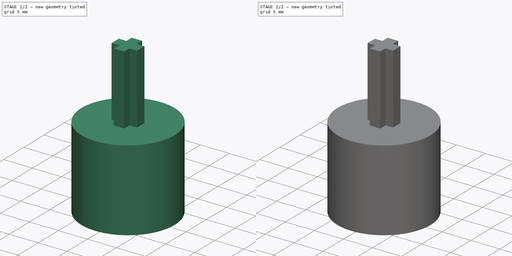
[diagram: build sequence overview — one tinted view per stage of 2, left to right]
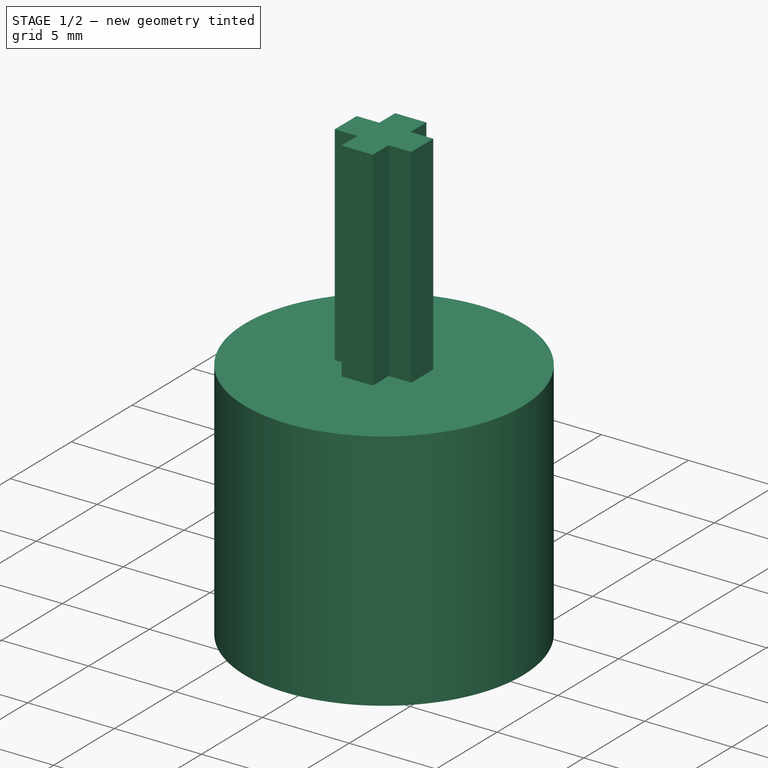
[diagram: stage 1 of 2 — iso view after this stage's code; geometry added in this stage tinted green]
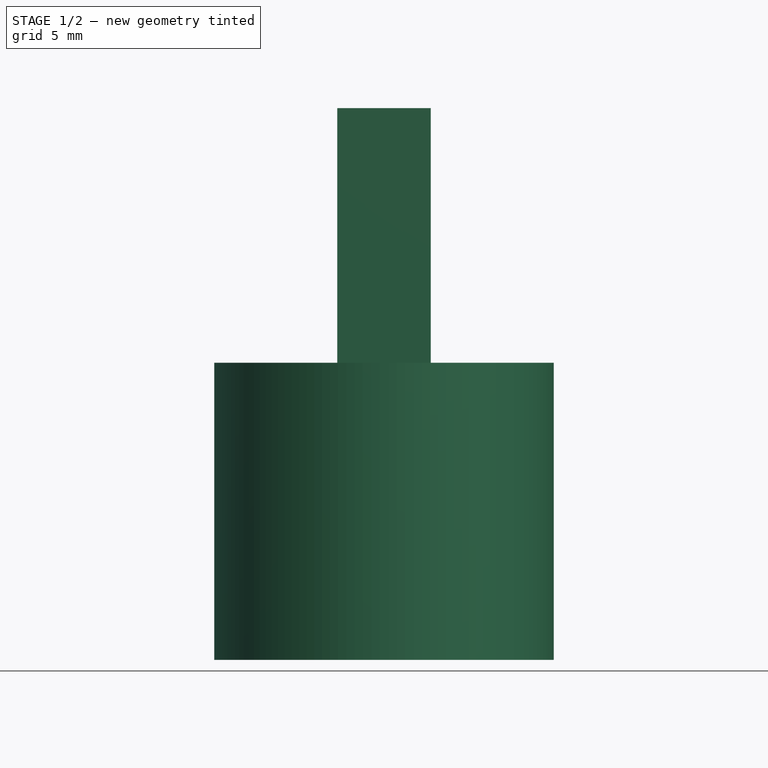
[diagram: stage 1 of 2 — front view after this stage's code; geometry added in this stage tinted green]
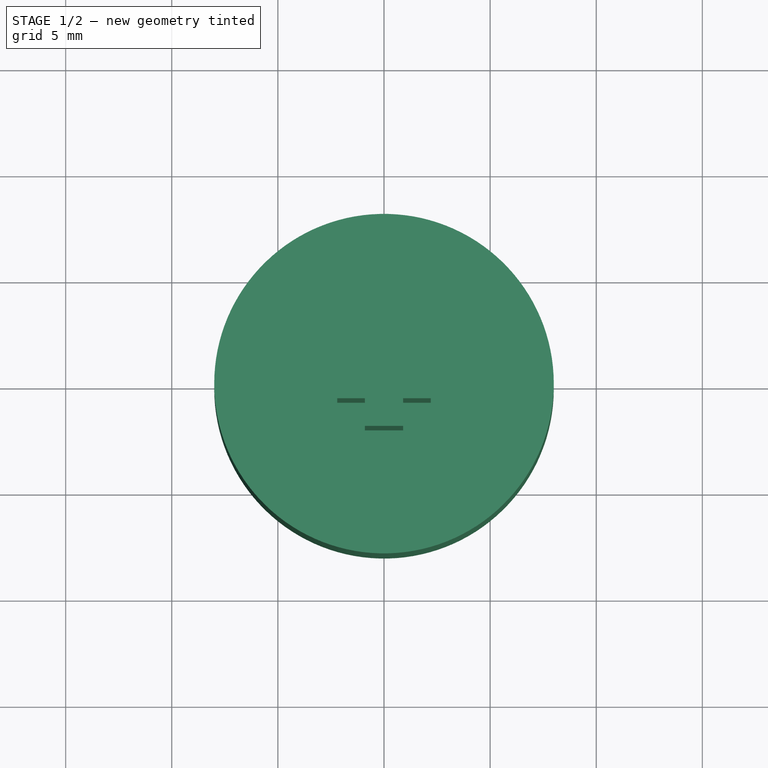
[diagram: stage 1 of 2 — top view after this stage's code; geometry added in this stage tinted green]
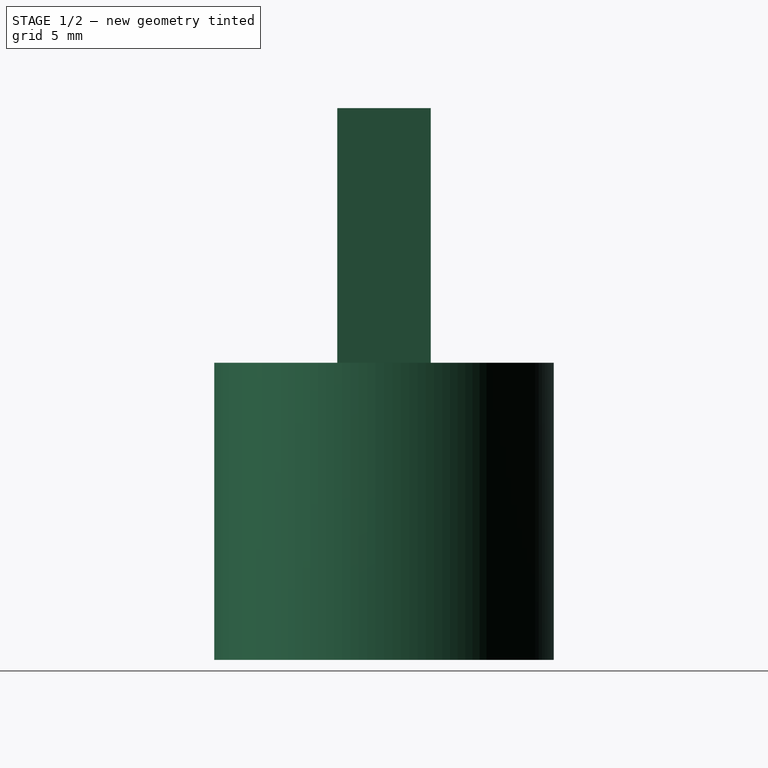
[diagram: stage 1 of 2 — right view after this stage's code; geometry added in this stage tinted green]
FCSTD DOCUMENT  (FreeCAD 0.16R6706 (Git))
Label: Adaptateur arbre-roue petit
License: All rights reserved
LicenseURL: http://en.wikipedia.org/wiki/All_rights_reserved
objects: Sketcher::SketchObject×3, PartDesign::Pad×2, PartDesign::Pocket×1
note: 9 computed .brp shape members not serialized (recipe doc carries the construction recipe); baked Part::Feature solids carry a one-line shape summary decoded from their .brp

FEATURE [Sketcher::SketchObject] Sketch
  sketch-geometry (1):
    g0: Circle CenterX=0 CenterY=0 CenterZ=0 NormalX=0 NormalY=0 NormalZ=1 Radius=8
  constraints (2):
    c: Coincident(g0,g-1)
    c: Radius(g0) = 8
FEATURE [PartDesign::Pad] Pad
  Length = 14
  Length2 = 100
  Sketch = -> Sketch
  Type = 0
FEATURE [Sketcher::SketchObject] Sketch001
  Placement = pos=(0,0,14) rot=(0,0,1;0rad)
  Support = -> Pad [Face3]
  sketch-geometry (12):
    g0: LineSegment StartX=-0.9 StartY=2.2 StartZ=0 EndX=0.9 EndY=2.2 EndZ=0
    g1: LineSegment StartX=0.9 StartY=2.2 StartZ=0 EndX=0.9 EndY=0.9 EndZ=0
    g2: LineSegment StartX=0.9 StartY=0.9 StartZ=0 EndX=2.2 EndY=0.9 EndZ=0
    g3: LineSegment StartX=2.2 StartY=0.9 StartZ=0 EndX=2.2 EndY=-0.9 EndZ=0
    g4: LineSegment StartX=2.2 StartY=-0.9 StartZ=0 EndX=0.9 EndY=-0.9 EndZ=0
    g5: LineSegment StartX=0.9 StartY=-0.9 StartZ=0 EndX=0.9 EndY=-2.2 EndZ=0
    g6: LineSegment StartX=0.9 StartY=-2.2 StartZ=0 EndX=-0.9 EndY=-2.2 EndZ=0
    g7: LineSegment StartX=-0.9 StartY=-2.2 StartZ=0 EndX=-0.9 EndY=-0.9 EndZ=0
    g8: LineSegment StartX=-0.9 StartY=-0.9 StartZ=0 EndX=-2.2 EndY=-0.9 EndZ=0
    g9: LineSegment StartX=-2.2 StartY=-0.9 StartZ=0 EndX=-2.2 EndY=0.9 EndZ=0
    g10: LineSegment StartX=-2.2 StartY=0.9 StartZ=0 EndX=-0.9 EndY=0.9 EndZ=0
    g11: LineSegment StartX=-0.9 StartY=0.9 StartZ=0 EndX=-0.9 EndY=2.2 EndZ=0
  constraints (38):
    c: Horizontal(g0)
    c: Coincident(g0,g1)
    c: Vertical(g1)
    c: Coincident(g1,g2)
    c: Horizontal(g2)
    c: Coincident(g2,g3)
    c: Vertical(g3)
    c: Coincident(g3,g4)
    c: Horizontal(g4)
    c: Coincident(g4,g5)
    c: Vertical(g5)
    c: Coincident(g5,g6)
    c: Horizontal(g6)
    c: Coincident(g6,g7)
    c: Vertical(g7)
    c: Coincident(g7,g8)
    c: Horizontal(g8)
    c: Coincident(g8,g9)
    c: Vertical(g9)
    c: Coincident(g9,g10)
    c: Horizontal(g10)
    c: Coincident(g10,g11)
    c: Coincident(g11,g0)
    c: Equal(g11,g1)
    c: Equal(g1,g7)
    c: Equal(g7,g5)
    c: Equal(g5,g4)
    c: Equal(g4,g2)
    c: Equal(g2,g10)
    c: Equal(g10,g8)
    c: Parallel(g11,g1)
    c: Equal(g0,g6)
    c: Equal(g6,g3)
    c: Equal(g3,g9)
    c: DistanceX(g-1,g2) = 2.2
    c: DistanceX(g0,g0) = 1.8
    c: DistanceY(g-1,g0) = 2.2
    c: DistanceY(g11,g11) = 1.3
FEATURE [PartDesign::Pad] Pad001
  Length = 12
  Length2 = 100
  Sketch = -> Sketch001
  Type = 0
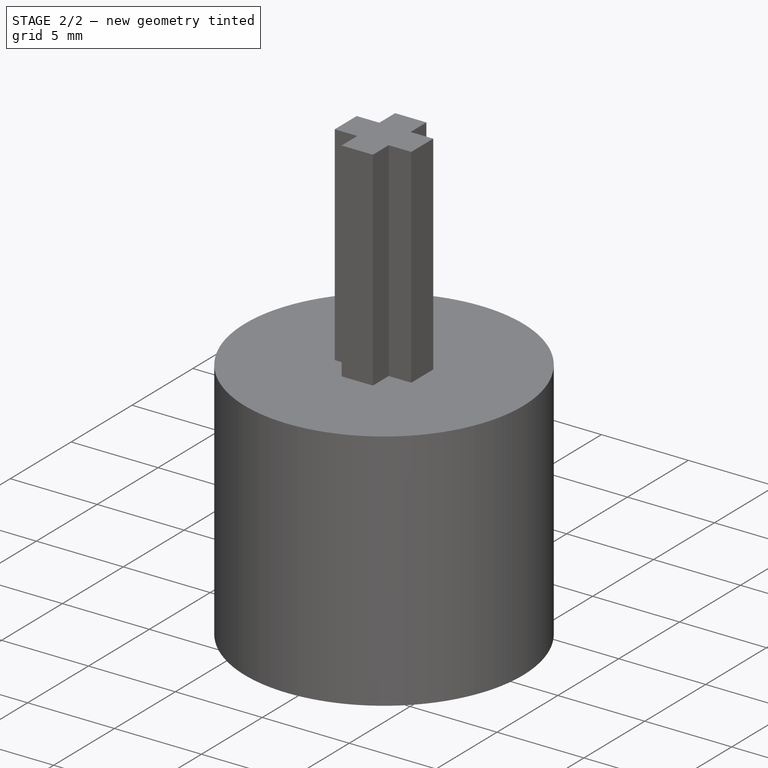
[diagram: stage 2 of 2 — iso view after this stage's code; geometry added in this stage tinted green]
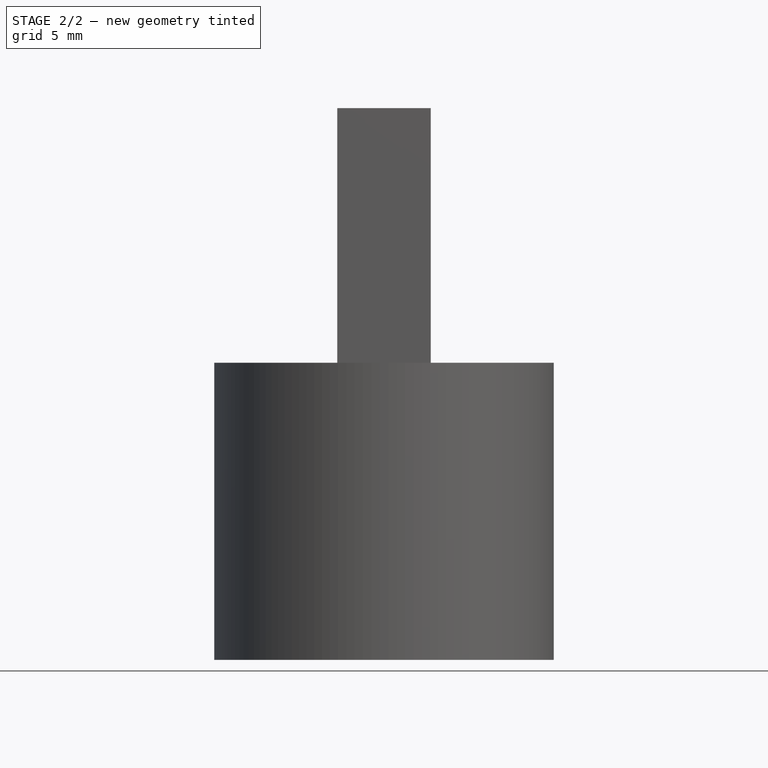
[diagram: stage 2 of 2 — front view after this stage's code; geometry added in this stage tinted green]
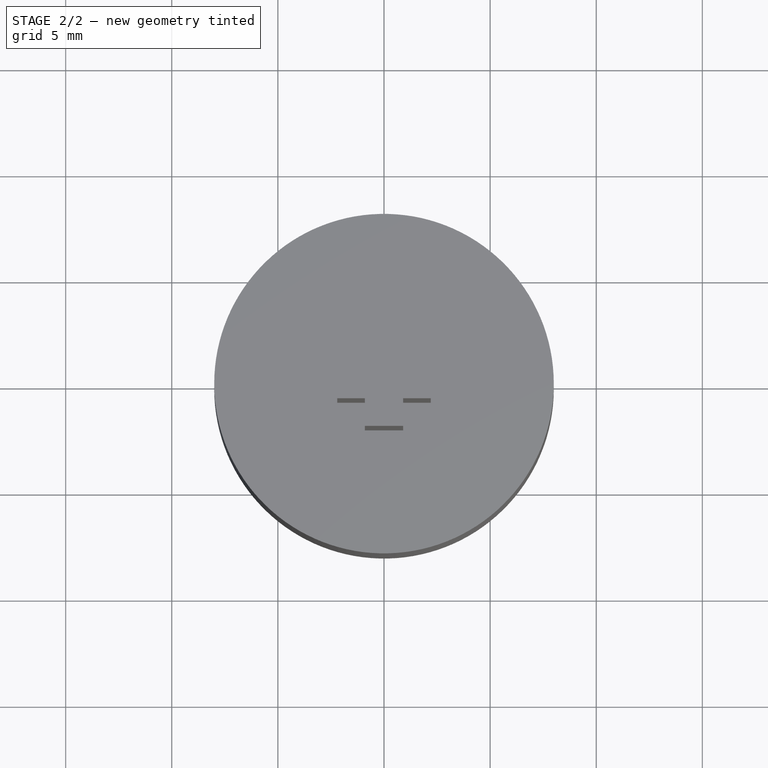
[diagram: stage 2 of 2 — top view after this stage's code; geometry added in this stage tinted green]
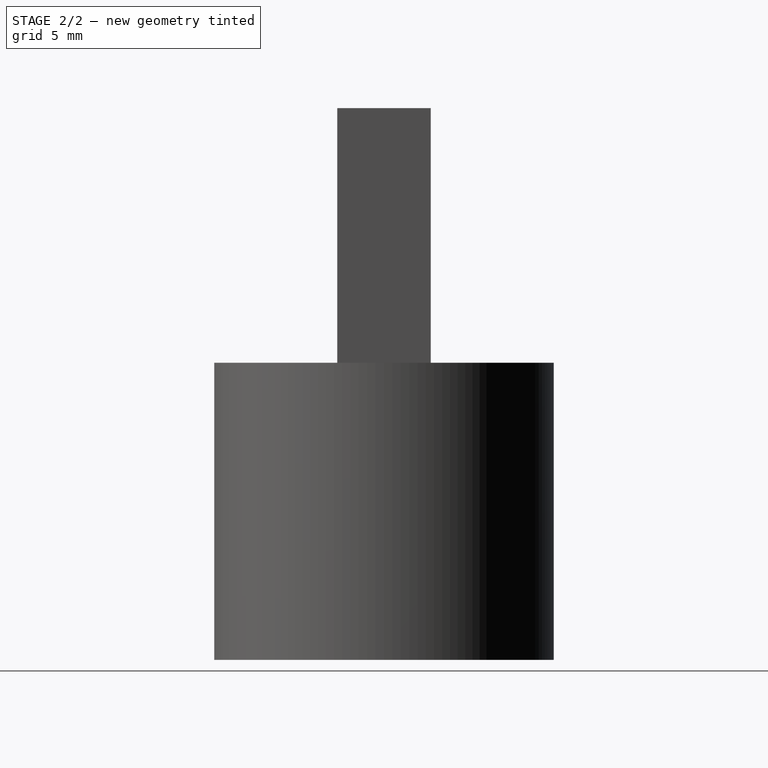
[diagram: stage 2 of 2 — right view after this stage's code; geometry added in this stage tinted green]
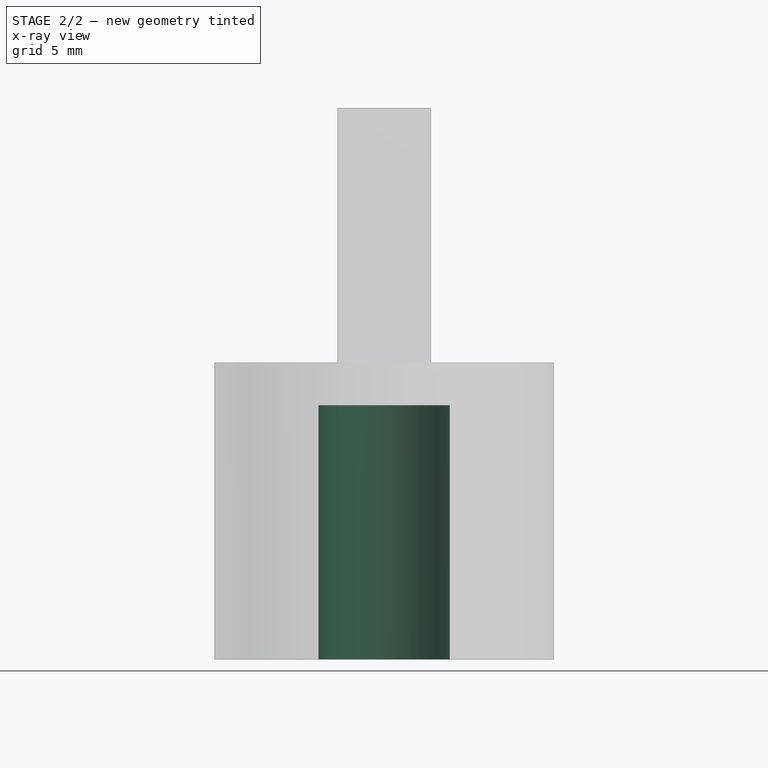
[diagram: stage 2 of 2 — x-ray composite at the front view; earlier geometry ghosted, this stage's added geometry solid]
FEATURE [Sketcher::SketchObject] Sketch002
  Placement = pos=(0,0,0) rot=(1,0,0;3.14159rad)
  Support = -> Pad001 [Face2]
  sketch-geometry (2):
    g0: ArcOfCircle CenterX=0 CenterY=0 CenterZ=0 NormalX=0 NormalY=0 NormalZ=1 Radius=3.1 StartAngle=2.19032 EndAngle=7.23446
    g1: LineSegment StartX=-1.8 StartY=2.52389 StartZ=0 EndX=1.8 EndY=2.52389 EndZ=0
  constraints (6):
    c: Coincident(g1,g0)
    c: Coincident(g1,g0)
    c: Horizontal(g1)
    c: DistanceX(g1,g1) = 3.6
    c: Radius(g0) = 3.1
    c: Coincident(g0,g-1)
FEATURE [PartDesign::Pocket] Pocket
  Length = 12
  Sketch = -> Sketch002
  Type = 0
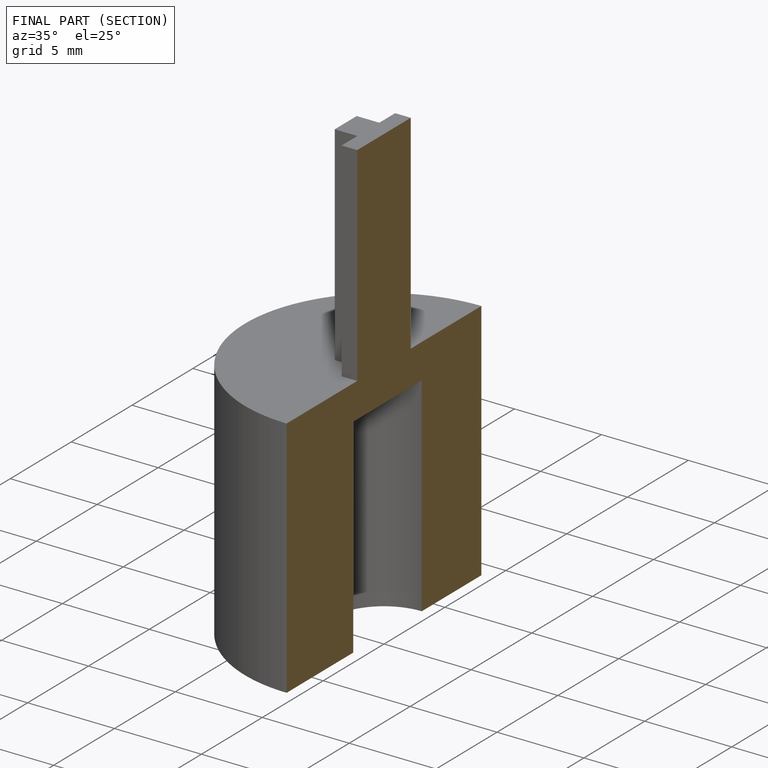
[diagram: finished part — half-section view (interior)]
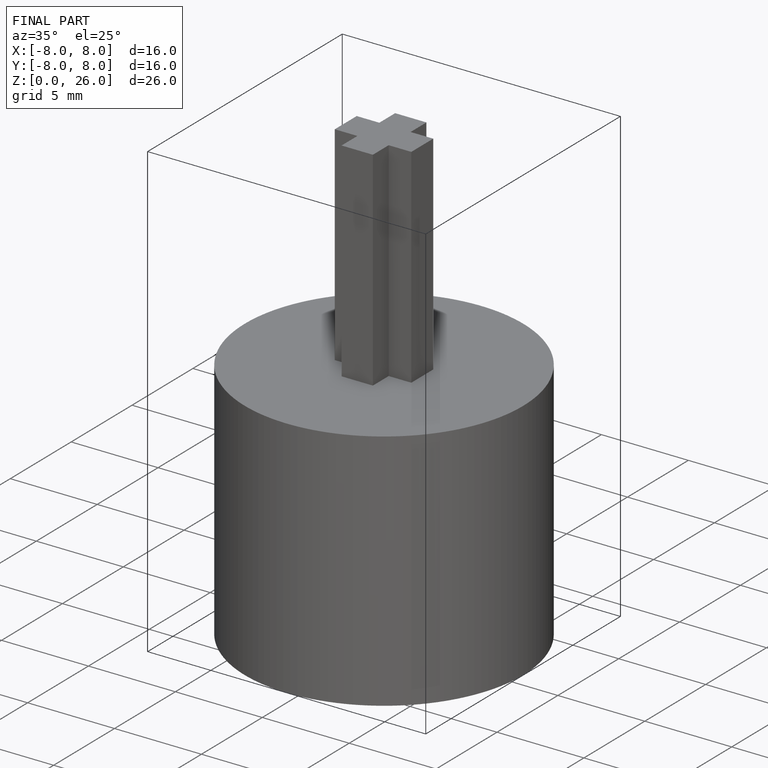
[diagram: finished part — iso view with bounding-box wireframe]
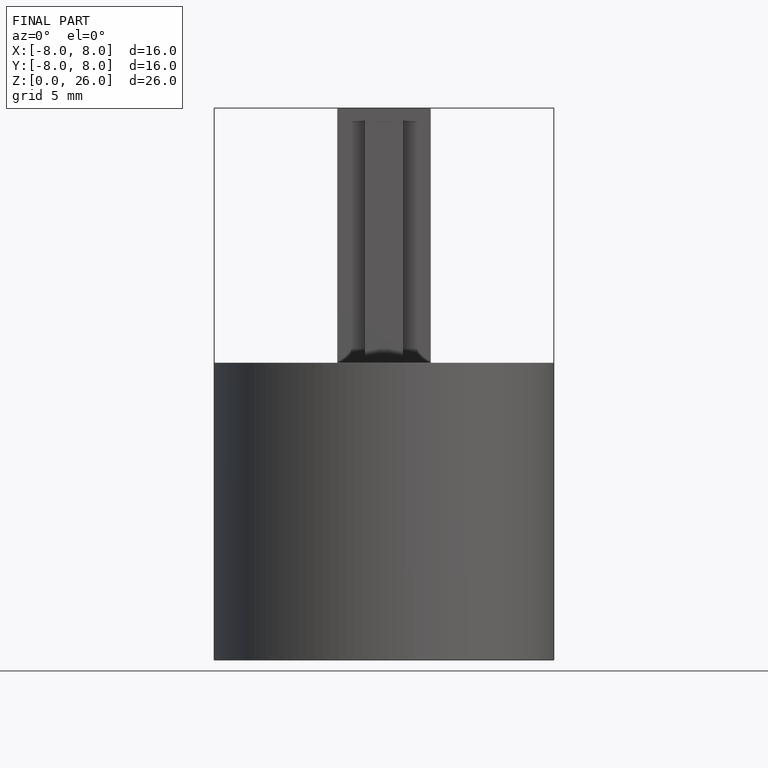
[diagram: finished part — front view with bounding-box wireframe]
